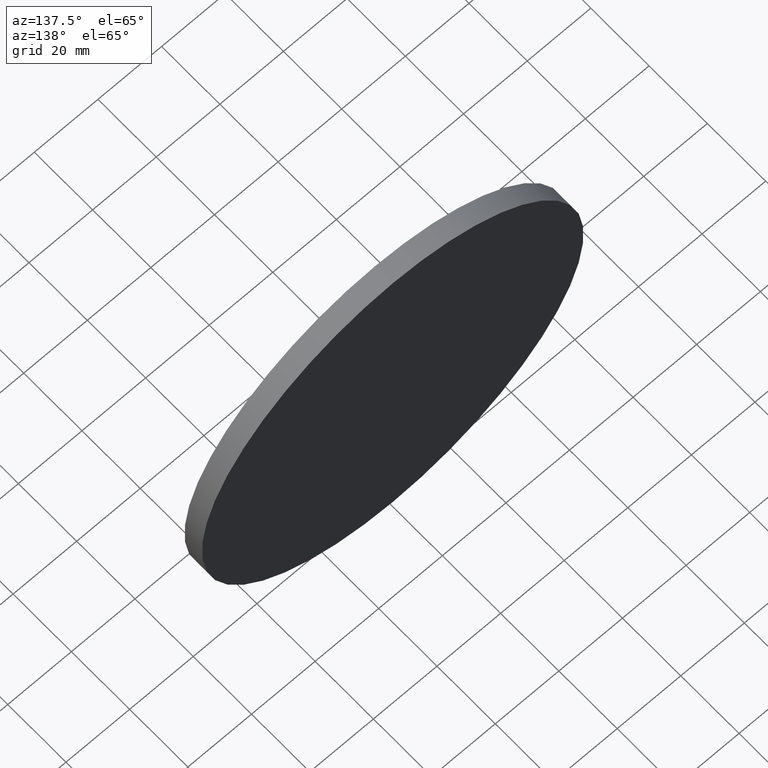
[diagram: clean part render]
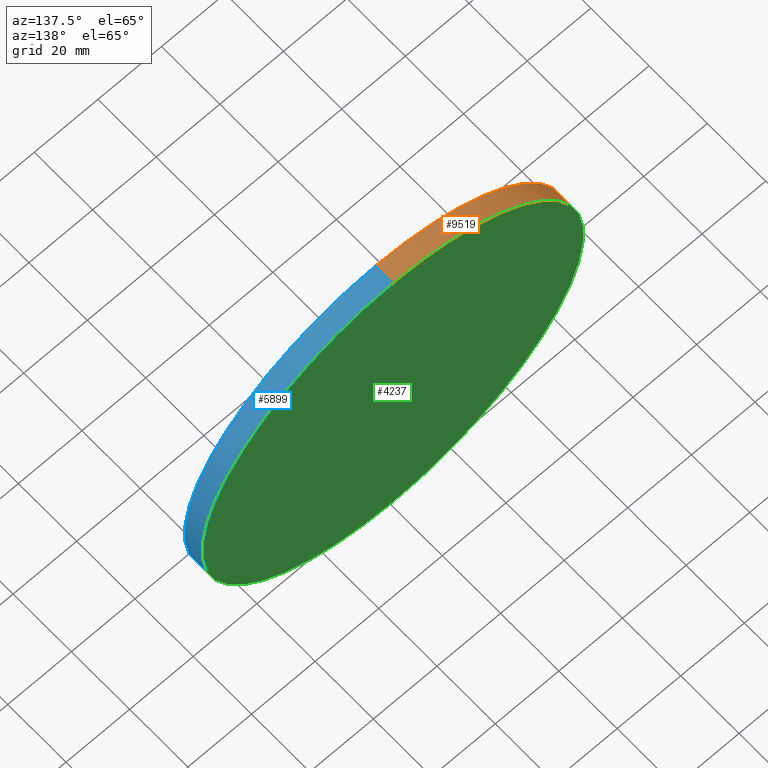
[diagram: same view with three faces highlighted in distinct colors, each labeled with its STEP entity id]
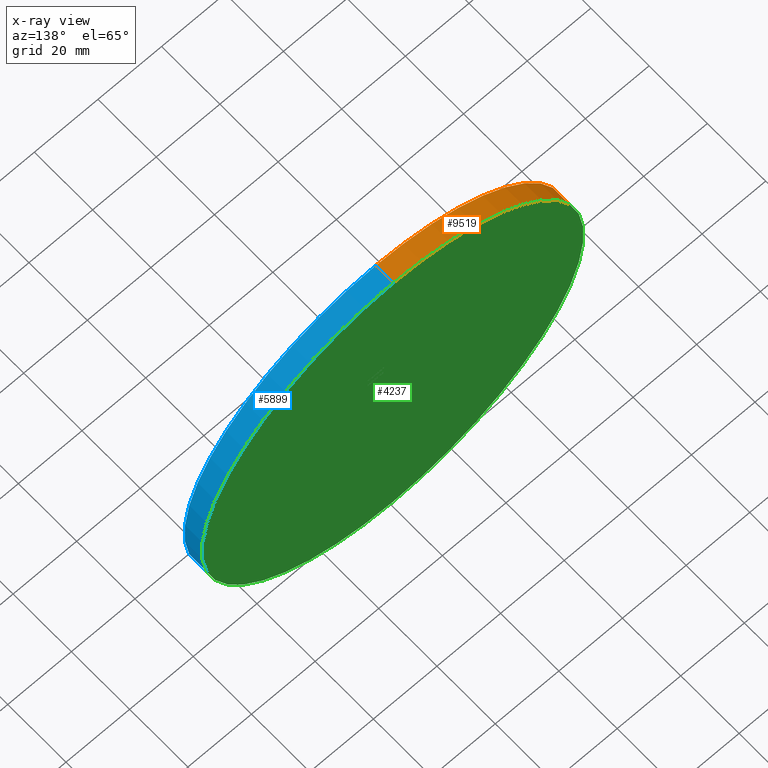
[diagram: x-ray of the same camera — body ghosted, the three highlighted faces saturated]
A machine part, auxiliary view with three faces highlighted in distinct colors.
The next image is the same camera in x-ray (body ghosted, the three faces saturated) — at least one of them is partly hidden behind the body in this view.
Their STEP definitions:

[orange] entity #9519 — the highlighted cylindrical surface (partial cylindrical patch) has radius 60 mm, axis along (-0, -1, -0).
#782 = EDGE_LOOP ( 'NONE', ( #4433, #11317, #3656, #5263 ) ) ;
#1335 = VECTOR ( 'NONE', #4380, 1000.000000000000000 ) ;
#1732 = VERTEX_POINT ( 'NONE', #8223 ) ;
#2042 = CARTESIAN_POINT ( 'NONE',  ( 7.347880794884118356E-15, 3.000000000000000000, 60.00000000000000000 ) ) ;
#2448 = DIRECTION ( 'NONE',  ( 0.000000000000000000, 0.000000000000000000, -1.000000000000000000 ) ) ;
#2784 = CARTESIAN_POINT ( 'NONE',  ( 0.000000000000000000, -3.000000000000000000, 0.000000000000000000 ) ) ;
#3176 = FACE_OUTER_BOUND ( 'NONE', #782, .T. ) ;
#3188 = VERTEX_POINT ( 'NONE', #5625 ) ;
#3478 = LINE ( 'NONE', #2042, #7301 ) ;
#3656 = ORIENTED_EDGE ( 'NONE', *, *, #9502, .T. ) ;
#4380 = DIRECTION ( 'NONE',  ( -0.000000000000000000, -1.000000000000000000, -0.000000000000000000 ) ) ;
#4433 = ORIENTED_EDGE ( 'NONE', *, *, #9816, .F. ) ;
#4839 = AXIS2_PLACEMENT_3D ( 'NONE', #2784, #5611, #6508 ) ;
#5039 = EDGE_CURVE ( 'NONE', #9825, #3188, #12433, .T. ) ;
#5263 = ORIENTED_EDGE ( 'NONE', *, *, #11295, .T. ) ;
#5611 = DIRECTION ( 'NONE',  ( 0.000000000000000000, 1.000000000000000000, 0.000000000000000000 ) ) ;
#5625 = CARTESIAN_POINT ( 'NONE',  ( 7.347880794884118356E-15, 3.000000000000000000, 60.00000000000000000 ) ) ;
#6508 = DIRECTION ( 'NONE',  ( 0.000000000000000000, 0.000000000000000000, 1.000000000000000000 ) ) ;
#6924 = DIRECTION ( 'NONE',  ( -0.000000000000000000, -1.000000000000000000, -0.000000000000000000 ) ) ;
#7301 = VECTOR ( 'NONE', #6924, 1000.000000000000000 ) ;
#8175 = CARTESIAN_POINT ( 'NONE',  ( 7.347880794884118356E-15, -3.000000000000000000, 60.00000000000000000 ) ) ;
#8223 = CARTESIAN_POINT ( 'NONE',  ( 0.000000000000000000, -3.000000000000000000, -60.00000000000000000 ) ) ;
#8555 = VERTEX_POINT ( 'NONE', #8175 ) ;
#9103 = CARTESIAN_POINT ( 'NONE',  ( 0.000000000000000000, 3.000000000000000000, -60.00000000000000000 ) ) ;
#9121 = LINE ( 'NONE', #9103, #1335 ) ;
#9476 = CARTESIAN_POINT ( 'NONE',  ( 0.000000000000000000, 3.000000000000000000, 0.000000000000000000 ) ) ;
#9502 = EDGE_CURVE ( 'NONE', #9825, #1732, #9121, .T. ) ;
#9519 = ADVANCED_FACE ( 'NONE', ( #3176 ), #11407, .T. ) ;
#9816 = EDGE_CURVE ( 'NONE', #3188, #8555, #3478, .T. ) ;
#9825 = VERTEX_POINT ( 'NONE', #10742 ) ;
#10164 = CARTESIAN_POINT ( 'NONE',  ( 0.000000000000000000, 3.000000000000000000, 0.000000000000000000 ) ) ;
#10279 = DIRECTION ( 'NONE',  ( 0.000000000000000000, 0.000000000000000000, 1.000000000000000000 ) ) ;
#10742 = CARTESIAN_POINT ( 'NONE',  ( 0.000000000000000000, 3.000000000000000000, -60.00000000000000000 ) ) ;
#10765 = CIRCLE ( 'NONE', #4839, 60.00000000000000000 ) ;
#11295 = EDGE_CURVE ( 'NONE', #1732, #8555, #10765, .T. ) ;
#11317 = ORIENTED_EDGE ( 'NONE', *, *, #5039, .F. ) ;
#11407 = CYLINDRICAL_SURFACE ( 'NONE', #12024, 60.00000000000000000 ) ;
#12024 = AXIS2_PLACEMENT_3D ( 'NONE', #10164, #12168, #2448 ) ;
#12145 = DIRECTION ( 'NONE',  ( 0.000000000000000000, 1.000000000000000000, 0.000000000000000000 ) ) ;
#12168 = DIRECTION ( 'NONE',  ( -0.000000000000000000, -1.000000000000000000, -0.000000000000000000 ) ) ;
#12176 = AXIS2_PLACEMENT_3D ( 'NONE', #9476, #12145, #10279 ) ;
#12433 = CIRCLE ( 'NONE', #12176, 60.00000000000000000 ) ;

[blue] entity #5899 — the highlighted cylindrical surface (partial cylindrical patch) has radius 60 mm, axis along (-0, -1, -0).
#450 = ORIENTED_EDGE ( 'NONE', *, *, #9502, .F. ) ;
#980 = CARTESIAN_POINT ( 'NONE',  ( 0.000000000000000000, -3.000000000000000000, 0.000000000000000000 ) ) ;
#1021 = DIRECTION ( 'NONE',  ( 0.000000000000000000, 0.000000000000000000, 1.000000000000000000 ) ) ;
#1335 = VECTOR ( 'NONE', #4380, 1000.000000000000000 ) ;
#1563 = EDGE_CURVE ( 'NONE', #8555, #1732, #6963, .T. ) ;
#1732 = VERTEX_POINT ( 'NONE', #8223 ) ;
#1974 = ORIENTED_EDGE ( 'NONE', *, *, #1563, .T. ) ;
#2042 = CARTESIAN_POINT ( 'NONE',  ( 7.347880794884118356E-15, 3.000000000000000000, 60.00000000000000000 ) ) ;
#2786 = AXIS2_PLACEMENT_3D ( 'NONE', #5266, #5351, #12118 ) ;
#2987 = DIRECTION ( 'NONE',  ( 0.000000000000000000, 1.000000000000000000, 0.000000000000000000 ) ) ;
#3134 = CIRCLE ( 'NONE', #4012, 60.00000000000000000 ) ;
#3188 = VERTEX_POINT ( 'NONE', #5625 ) ;
#3478 = LINE ( 'NONE', #2042, #7301 ) ;
#3564 = EDGE_CURVE ( 'NONE', #3188, #9825, #3134, .T. ) ;
#4012 = AXIS2_PLACEMENT_3D ( 'NONE', #6785, #9762, #9005 ) ;
#4380 = DIRECTION ( 'NONE',  ( -0.000000000000000000, -1.000000000000000000, -0.000000000000000000 ) ) ;
#4639 = CYLINDRICAL_SURFACE ( 'NONE', #2786, 60.00000000000000000 ) ;
#4781 = ORIENTED_EDGE ( 'NONE', *, *, #9816, .T. ) ;
#5266 = CARTESIAN_POINT ( 'NONE',  ( 0.000000000000000000, 3.000000000000000000, 0.000000000000000000 ) ) ;
#5351 = DIRECTION ( 'NONE',  ( -0.000000000000000000, -1.000000000000000000, -0.000000000000000000 ) ) ;
#5625 = CARTESIAN_POINT ( 'NONE',  ( 7.347880794884118356E-15, 3.000000000000000000, 60.00000000000000000 ) ) ;
#5899 = ADVANCED_FACE ( 'NONE', ( #7086 ), #4639, .T. ) ;
#6064 = ORIENTED_EDGE ( 'NONE', *, *, #3564, .F. ) ;
#6785 = CARTESIAN_POINT ( 'NONE',  ( 0.000000000000000000, 3.000000000000000000, 0.000000000000000000 ) ) ;
#6924 = DIRECTION ( 'NONE',  ( -0.000000000000000000, -1.000000000000000000, -0.000000000000000000 ) ) ;
#6963 = CIRCLE ( 'NONE', #11017, 60.00000000000000000 ) ;
#7086 = FACE_OUTER_BOUND ( 'NONE', #8437, .T. ) ;
#7301 = VECTOR ( 'NONE', #6924, 1000.000000000000000 ) ;
#8175 = CARTESIAN_POINT ( 'NONE',  ( 7.347880794884118356E-15, -3.000000000000000000, 60.00000000000000000 ) ) ;
#8223 = CARTESIAN_POINT ( 'NONE',  ( 0.000000000000000000, -3.000000000000000000, -60.00000000000000000 ) ) ;
#8437 = EDGE_LOOP ( 'NONE', ( #6064, #4781, #1974, #450 ) ) ;
#8555 = VERTEX_POINT ( 'NONE', #8175 ) ;
#9005 = DIRECTION ( 'NONE',  ( 0.000000000000000000, 0.000000000000000000, 1.000000000000000000 ) ) ;
#9103 = CARTESIAN_POINT ( 'NONE',  ( 0.000000000000000000, 3.000000000000000000, -60.00000000000000000 ) ) ;
#9121 = LINE ( 'NONE', #9103, #1335 ) ;
#9502 = EDGE_CURVE ( 'NONE', #9825, #1732, #9121, .T. ) ;
#9762 = DIRECTION ( 'NONE',  ( 0.000000000000000000, 1.000000000000000000, 0.000000000000000000 ) ) ;
#9816 = EDGE_CURVE ( 'NONE', #3188, #8555, #3478, .T. ) ;
#9825 = VERTEX_POINT ( 'NONE', #10742 ) ;
#10742 = CARTESIAN_POINT ( 'NONE',  ( 0.000000000000000000, 3.000000000000000000, -60.00000000000000000 ) ) ;
#11017 = AXIS2_PLACEMENT_3D ( 'NONE', #980, #2987, #1021 ) ;
#12118 = DIRECTION ( 'NONE',  ( 0.000000000000000000, 0.000000000000000000, -1.000000000000000000 ) ) ;

[green] entity #4237 — the highlighted planar face has unit normal (0, 1, 0).
#274 = DIRECTION ( 'NONE',  ( 0.000000000000000000, -0.000000000000000000, 1.000000000000000000 ) ) ;
#3134 = CIRCLE ( 'NONE', #4012, 60.00000000000000000 ) ;
#3188 = VERTEX_POINT ( 'NONE', #5625 ) ;
#3564 = EDGE_CURVE ( 'NONE', #3188, #9825, #3134, .T. ) ;
#4012 = AXIS2_PLACEMENT_3D ( 'NONE', #6785, #9762, #9005 ) ;
#4237 = ADVANCED_FACE ( 'NONE', ( #9986 ), #6393, .T. ) ;
#4344 = ORIENTED_EDGE ( 'NONE', *, *, #3564, .T. ) ;
#5039 = EDGE_CURVE ( 'NONE', #9825, #3188, #12433, .T. ) ;
#5625 = CARTESIAN_POINT ( 'NONE',  ( 7.347880794884118356E-15, 3.000000000000000000, 60.00000000000000000 ) ) ;
#6393 = PLANE ( 'NONE',  #12581 ) ;
#6785 = CARTESIAN_POINT ( 'NONE',  ( 0.000000000000000000, 3.000000000000000000, 0.000000000000000000 ) ) ;
#7141 = ORIENTED_EDGE ( 'NONE', *, *, #5039, .T. ) ;
#9005 = DIRECTION ( 'NONE',  ( 0.000000000000000000, 0.000000000000000000, 1.000000000000000000 ) ) ;
#9476 = CARTESIAN_POINT ( 'NONE',  ( 0.000000000000000000, 3.000000000000000000, 0.000000000000000000 ) ) ;
#9762 = DIRECTION ( 'NONE',  ( 0.000000000000000000, 1.000000000000000000, 0.000000000000000000 ) ) ;
#9825 = VERTEX_POINT ( 'NONE', #10742 ) ;
#9986 = FACE_OUTER_BOUND ( 'NONE', #10658, .T. ) ;
#10279 = DIRECTION ( 'NONE',  ( 0.000000000000000000, 0.000000000000000000, 1.000000000000000000 ) ) ;
#10658 = EDGE_LOOP ( 'NONE', ( #7141, #4344 ) ) ;
#10742 = CARTESIAN_POINT ( 'NONE',  ( 0.000000000000000000, 3.000000000000000000, -60.00000000000000000 ) ) ;
#11235 = DIRECTION ( 'NONE',  ( 0.000000000000000000, 1.000000000000000000, 0.000000000000000000 ) ) ;
#12145 = DIRECTION ( 'NONE',  ( 0.000000000000000000, 1.000000000000000000, 0.000000000000000000 ) ) ;
#12176 = AXIS2_PLACEMENT_3D ( 'NONE', #9476, #12145, #10279 ) ;
#12216 = CARTESIAN_POINT ( 'NONE',  ( 0.000000000000000000, 3.000000000000000000, 0.000000000000000000 ) ) ;
#12433 = CIRCLE ( 'NONE', #12176, 60.00000000000000000 ) ;
#12581 = AXIS2_PLACEMENT_3D ( 'NONE', #12216, #11235, #274 ) ;